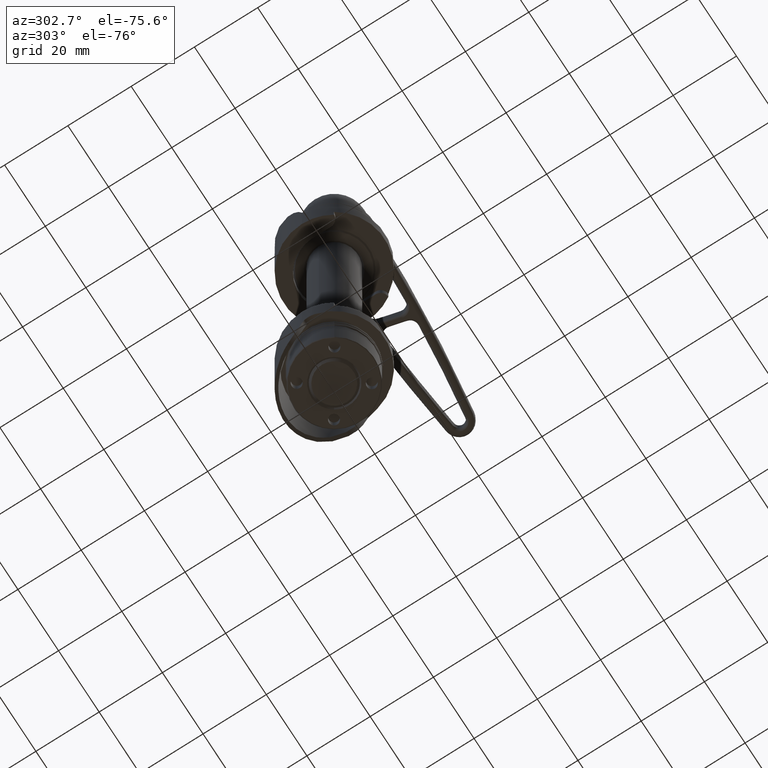
[diagram: clean part render]
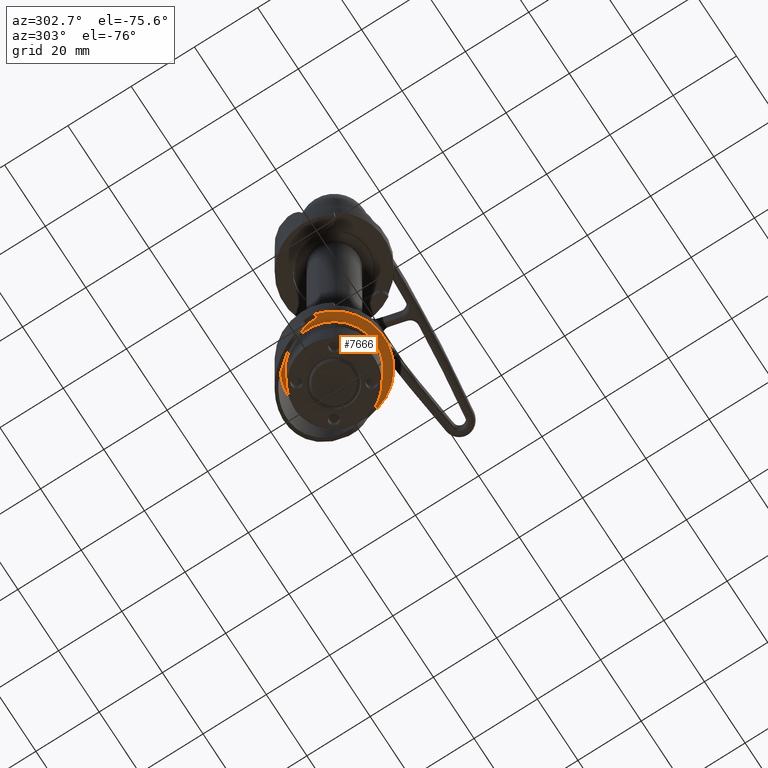
[diagram: same view with one face highlighted and labeled with its STEP entity id]
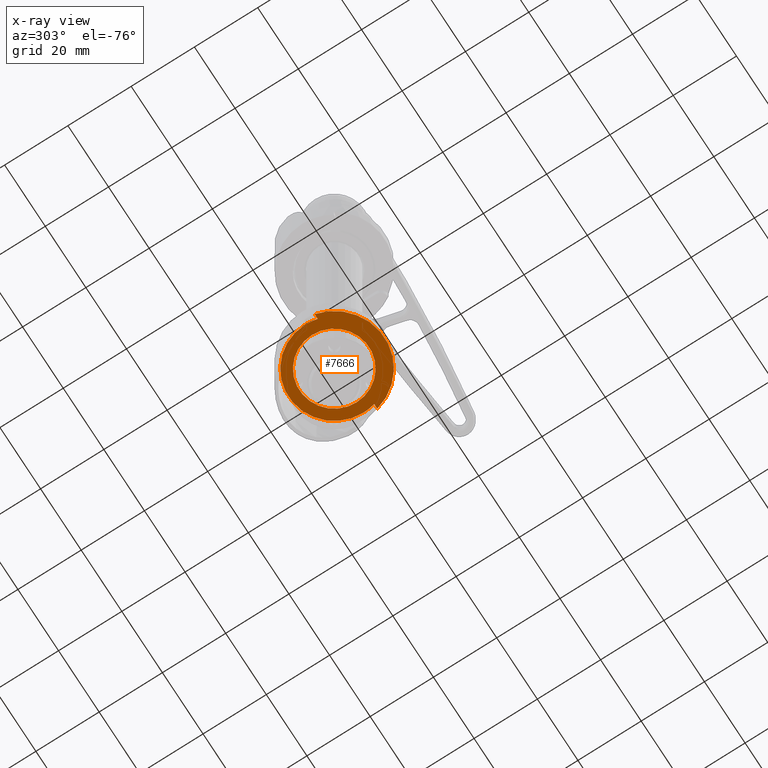
[diagram: x-ray of the same camera — body ghosted, the highlighted face saturated]
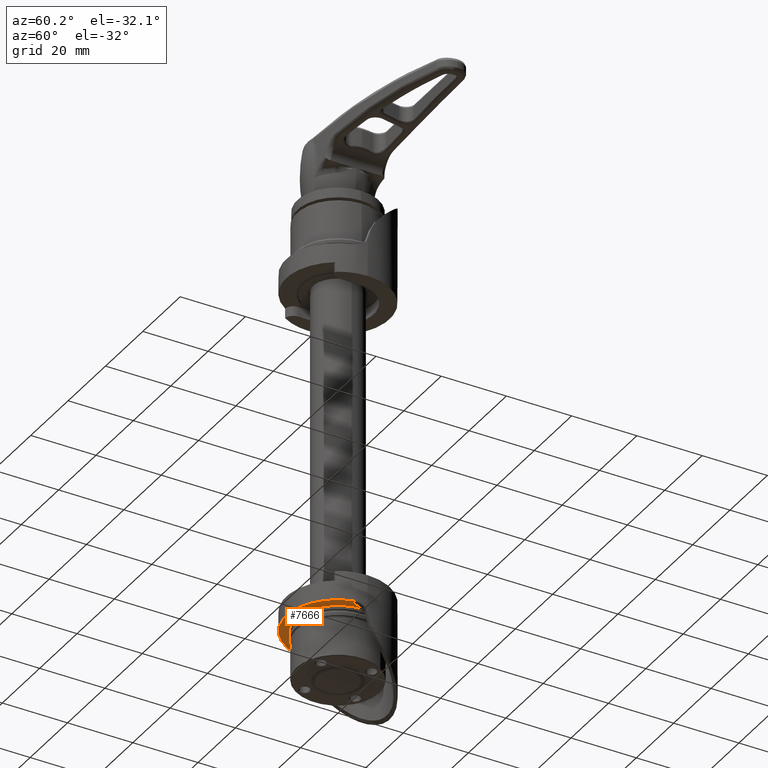
[diagram: same view with one face highlighted and labeled with its STEP entity id]
A machine part, auxiliary view. The second image highlights one B-rep face of the part: STEP entity #7666.
The next image is the same camera in x-ray: the body ghosted, the highlighted face saturated — about 0% of this face is hidden behind the body in this view.
A second angle (auxiliary view) of the same face is appended — the face is thin or edge-on in the first view.
In plain terms, the highlighted planar face has unit normal (-0, -0, -1).
Its self-contained STEP definition (entity closure, byte-faithful):
#1 = EDGE_LOOP ( 'NONE', ( #4695, #6285, #6345, #2301, #2523, #4097 ) ) ;
#126 = VERTEX_POINT ( 'NONE', #6041 ) ;
#242 = DIRECTION ( 'NONE',  ( 1.000000000000000000, -0.0000000000000000000, -0.0000000000000000000 ) ) ;
#252 = EDGE_CURVE ( 'NONE', #281, #7110, #6125, .T. ) ;
#281 = VERTEX_POINT ( 'NONE', #5147 ) ;
#736 = AXIS2_PLACEMENT_3D ( 'NONE', #7469, #3548, #8107 ) ;
#880 = CARTESIAN_POINT ( 'NONE',  ( 0.0000000000000000000, 0.0000000000000000000, 9.000000000000000000 ) ) ;
#935 = CIRCLE ( 'NONE', #736, 14.37500000000000000 ) ;
#1194 = CARTESIAN_POINT ( 'NONE',  ( 0.0000000000000000000, 0.0000000000000000000, 9.000000000000000000 ) ) ;
#1296 = AXIS2_PLACEMENT_3D ( 'NONE', #1908, #3173, #2559 ) ;
#1423 = EDGE_CURVE ( 'NONE', #4185, #2372, #1548, .T. ) ;
#1514 = CARTESIAN_POINT ( 'NONE',  ( -15.87500000000000000, -3.703949181711681900, 9.000000000000000000 ) ) ;
#1529 = DIRECTION ( 'NONE',  ( 0.0000000000000000000, 0.0000000000000000000, 1.000000000000000000 ) ) ;
#1530 = FACE_OUTER_BOUND ( 'NONE', #1, .T. ) ;
#1548 = CIRCLE ( 'NONE', #4539, 11.00000000000000000 ) ;
#1710 = CARTESIAN_POINT ( 'NONE',  ( 0.0000000000000000000, 0.0000000000000000000, 9.000000000000000000 ) ) ;
#1823 = LINE ( 'NONE', #4102, #4651 ) ;
#1834 = DIRECTION ( 'NONE',  ( 1.000000000000000000, 0.0000000000000000000, 0.0000000000000000000 ) ) ;
#1908 = CARTESIAN_POINT ( 'NONE',  ( 0.0000000000000000000, 0.0000000000000000000, 9.000000000000001800 ) ) ;
#1976 = CARTESIAN_POINT ( 'NONE',  ( -13.88961430203507800, -3.703949181711681900, 9.000000000000000000 ) ) ;
#1998 = EDGE_CURVE ( 'NONE', #2971, #5653, #935, .T. ) ;
#2076 = DIRECTION ( 'NONE',  ( 0.0000000000000000000, 0.0000000000000000000, 1.000000000000000000 ) ) ;
#2126 = DIRECTION ( 'NONE',  ( 1.000000000000000000, -0.0000000000000000000, -0.0000000000000000000 ) ) ;
#2193 = EDGE_LOOP ( 'NONE', ( #2867, #3692 ) ) ;
#2301 = ORIENTED_EDGE ( 'NONE', *, *, #1998, .T. ) ;
#2358 = DIRECTION ( 'NONE',  ( 1.000000000000000000, 0.0000000000000000000, 0.0000000000000000000 ) ) ;
#2372 = VERTEX_POINT ( 'NONE', #7906 ) ;
#2392 = EDGE_CURVE ( 'NONE', #2372, #4185, #4453, .T. ) ;
#2523 = ORIENTED_EDGE ( 'NONE', *, *, #8111, .F. ) ;
#2559 = DIRECTION ( 'NONE',  ( 0.0000000000000000000, 1.000000000000000000, -1.092739197465705300E-016 ) ) ;
#2808 = DIRECTION ( 'NONE',  ( 1.000000000000000000, 0.0000000000000000000, -0.0000000000000000000 ) ) ;
#2867 = ORIENTED_EDGE ( 'NONE', *, *, #2392, .F. ) ;
#2923 = CARTESIAN_POINT ( 'NONE',  ( -14.37500000000000000, 1.795628713772980700E-015, 9.000000000000000000 ) ) ;
#2971 = VERTEX_POINT ( 'NONE', #2923 ) ;
#3071 = CARTESIAN_POINT ( 'NONE',  ( -15.43685153971811100, -3.703949181711681900, 9.000000000000000000 ) ) ;
#3122 = LINE ( 'NONE', #1514, #6606 ) ;
#3173 = DIRECTION ( 'NONE',  ( -0.0000000000000000000, -1.425286527741875600E-016, -1.000000000000000000 ) ) ;
#3548 = DIRECTION ( 'NONE',  ( 0.0000000000000000000, 0.0000000000000000000, 1.000000000000000000 ) ) ;
#3692 = ORIENTED_EDGE ( 'NONE', *, *, #1423, .F. ) ;
#3726 = CIRCLE ( 'NONE', #8307, 14.37500000000000000 ) ;
#3849 = EDGE_CURVE ( 'NONE', #126, #5922, #3726, .T. ) ;
#3879 = AXIS2_PLACEMENT_3D ( 'NONE', #880, #6722, #2808 ) ;
#4097 = ORIENTED_EDGE ( 'NONE', *, *, #252, .F. ) ;
#4102 = CARTESIAN_POINT ( 'NONE',  ( -15.87500000000000000, -3.703949181711681900, 9.000000000000000000 ) ) ;
#4185 = VERTEX_POINT ( 'NONE', #5761 ) ;
#4453 = CIRCLE ( 'NONE', #7971, 11.00000000000000000 ) ;
#4539 = AXIS2_PLACEMENT_3D ( 'NONE', #1710, #6254, #2358 ) ;
#4651 = VECTOR ( 'NONE', #242, 1000.000000000000000 ) ;
#4695 = ORIENTED_EDGE ( 'NONE', *, *, #8082, .F. ) ;
#5147 = CARTESIAN_POINT ( 'NONE',  ( 15.43685153971811100, -3.703949181711681900, 9.000000000000000000 ) ) ;
#5216 = EDGE_CURVE ( 'NONE', #5922, #2971, #7842, .T. ) ;
#5398 = PLANE ( 'NONE',  #3879 ) ;
#5401 = CARTESIAN_POINT ( 'NONE',  ( 0.0000000000000000000, 0.0000000000000000000, 9.000000000000000000 ) ) ;
#5653 = VERTEX_POINT ( 'NONE', #1976 ) ;
#5713 = DIRECTION ( 'NONE',  ( 0.0000000000000000000, 0.0000000000000000000, 1.000000000000000000 ) ) ;
#5745 = AXIS2_PLACEMENT_3D ( 'NONE', #1194, #5713, #1834 ) ;
#5761 = CARTESIAN_POINT ( 'NONE',  ( 11.00000000000000000, 1.347111479062088400E-015, 9.000000000000000000 ) ) ;
#5922 = VERTEX_POINT ( 'NONE', #7014 ) ;
#5959 = CARTESIAN_POINT ( 'NONE',  ( 0.0000000000000000000, 0.0000000000000000000, 9.000000000000000000 ) ) ;
#6041 = CARTESIAN_POINT ( 'NONE',  ( 13.88961430203508000, -3.703949181711681900, 9.000000000000000000 ) ) ;
#6052 = DIRECTION ( 'NONE',  ( 1.000000000000000000, 0.0000000000000000000, 0.0000000000000000000 ) ) ;
#6125 = CIRCLE ( 'NONE', #1296, 15.87500000000000000 ) ;
#6254 = DIRECTION ( 'NONE',  ( 0.0000000000000000000, 0.0000000000000000000, 1.000000000000000000 ) ) ;
#6285 = ORIENTED_EDGE ( 'NONE', *, *, #3849, .T. ) ;
#6345 = ORIENTED_EDGE ( 'NONE', *, *, #5216, .T. ) ;
#6606 = VECTOR ( 'NONE', #2126, 1000.000000000000000 ) ;
#6636 = DIRECTION ( 'NONE',  ( 1.000000000000000000, 0.0000000000000000000, 0.0000000000000000000 ) ) ;
#6709 = FACE_BOUND ( 'NONE', #2193, .T. ) ;
#6722 = DIRECTION ( 'NONE',  ( 0.0000000000000000000, 0.0000000000000000000, 1.000000000000000000 ) ) ;
#7014 = CARTESIAN_POINT ( 'NONE',  ( 14.37500000000000000, 0.0000000000000000000, 9.000000000000000000 ) ) ;
#7110 = VERTEX_POINT ( 'NONE', #3071 ) ;
#7469 = CARTESIAN_POINT ( 'NONE',  ( 0.0000000000000000000, 0.0000000000000000000, 9.000000000000000000 ) ) ;
#7666 = ADVANCED_FACE ( 'NONE', ( #6709, #1530 ), #5398, .T. ) ;
#7842 = CIRCLE ( 'NONE', #5745, 14.37500000000000000 ) ;
#7906 = CARTESIAN_POINT ( 'NONE',  ( -11.00000000000000000, 0.0000000000000000000, 9.000000000000000000 ) ) ;
#7971 = AXIS2_PLACEMENT_3D ( 'NONE', #5959, #2076, #6636 ) ;
#8082 = EDGE_CURVE ( 'NONE', #126, #281, #3122, .T. ) ;
#8107 = DIRECTION ( 'NONE',  ( 1.000000000000000000, 0.0000000000000000000, 0.0000000000000000000 ) ) ;
#8111 = EDGE_CURVE ( 'NONE', #7110, #5653, #1823, .T. ) ;
#8307 = AXIS2_PLACEMENT_3D ( 'NONE', #5401, #1529, #6052 ) ;